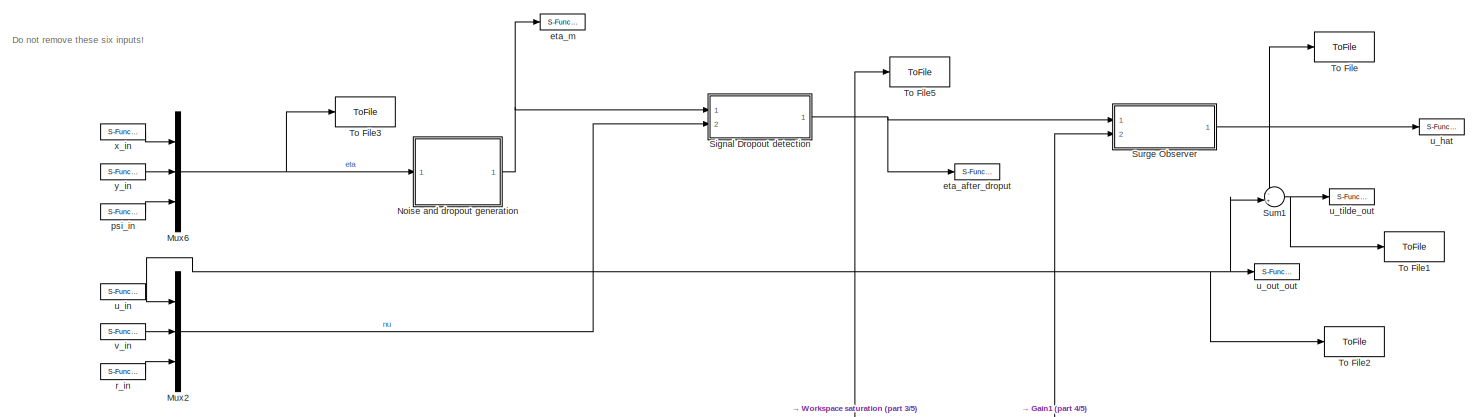
[diagram: root canvas - part 1/5, top center region]
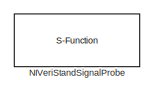
[diagram: root canvas - part 2/5, top right region]
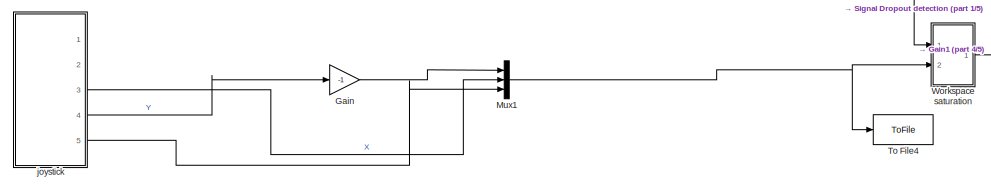
[diagram: root canvas - part 3/5, middle left region]
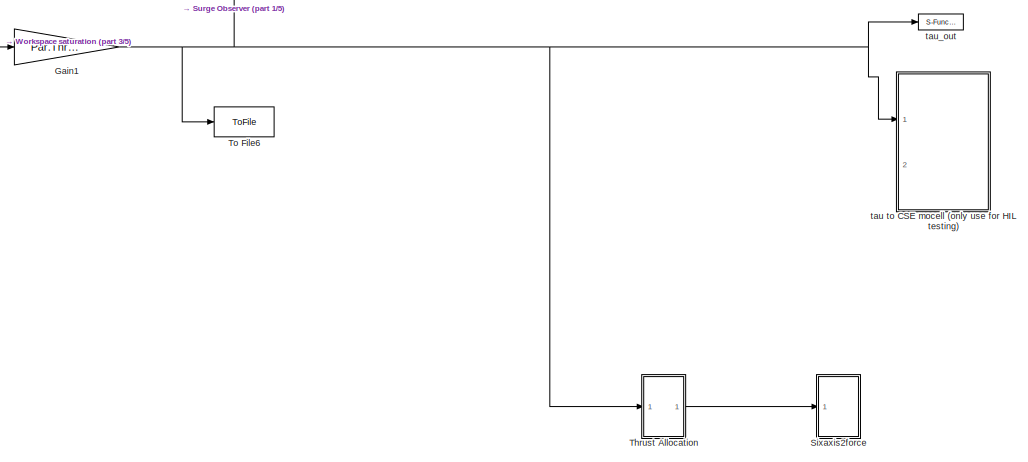
[diagram: root canvas - part 4/5, bottom right region]
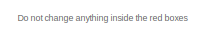
[diagram: root canvas - part 5/5, bottom left region]
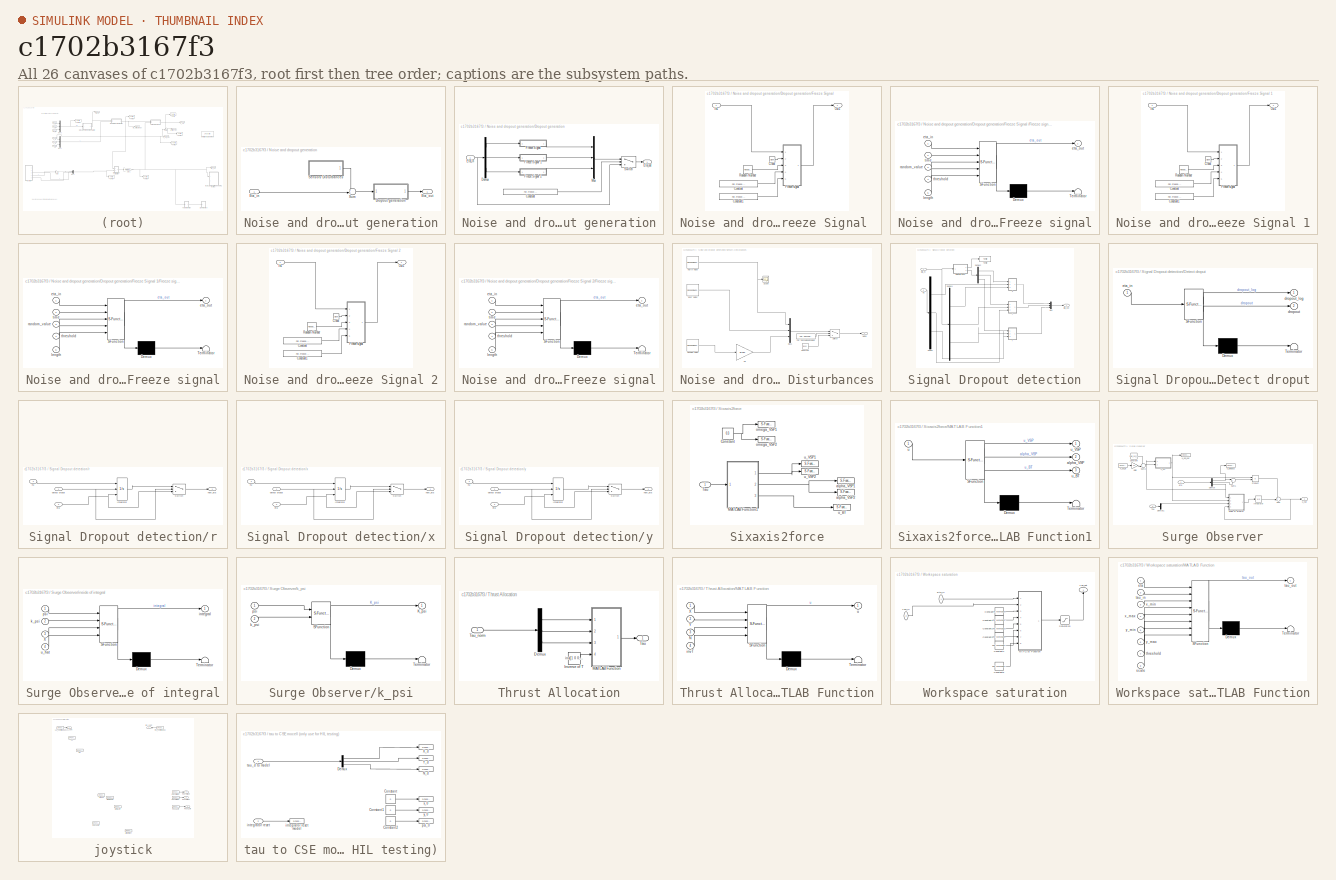
[diagram: thumbnail index - all 26 canvases of the model, root first then tree order]
MODEL slx_c1702b3167f3
KIND model
CONFIG AbsTol = auto
CONFIG FixedStep = 0.01
CONFIG MaxStep = auto
CONFIG MinStep = auto
CONFIG RelTol = 1e-3
CONFIG SampleTimeConstraint = Unconstrained
CONFIG Solver = ode4
CONFIG SolverMode = Auto
CONFIG SolverName = ode4
CONFIG StartTime = 0.0
CONFIG StopTime = inf
BLOCK [Gain] Gain
  Gain = -1
  OutDataTypeStr = Inherit: Inherit via internal rule
  ParamDataTypeStr = Inherit: Inherit via internal rule
  SaturateOnIntegerOverflow = off
BLOCK [Gain] Gain1
  Gain = Par.Thrust_lim
  OutDataTypeStr = Inherit: Inherit via internal rule
  ParamDataTypeStr = Inherit: Inherit via internal rule
  SaturateOnIntegerOverflow = off
BLOCK [Mux] Mux1
  DisplayOption = bar
  Inputs = 3
  Ports = [3, 1]
BLOCK [Mux] Mux2
  DisplayOption = bar
  Inputs = 3
  Ports = [3, 1]
BLOCK [Mux] Mux6
  DisplayOption = bar
  Inputs = 3
  Ports = [3, 1]
BLOCK [S-Function] NIVeriStandSignalProbe
  FunctionName = NIVeriStandSignalProbe
  Parameters = 1
  Ports = []
BLOCK [SubSystem] Noise and dropout generation
  Ports = [1, 1]
  RequestExecContextInheritance = off
BLOCK [SubSystem] Noise and dropout generation/Dropout generation
  Ports = [1, 1]
  RequestExecContextInheritance = off
BLOCK [Constant] Noise and dropout generation/Dropout generation/Constant
  Value = Par.Freeze.Enable
BLOCK [Demux] Noise and dropout generation/Dropout generation/Demux
  DisplayOption = bar
  Outputs = 3
  Ports = [1, 3]
BLOCK [Inport] Noise and dropout generation/Dropout generation/Eta_in
  IconDisplay = Port number
BLOCK [Outport] Noise and dropout generation/Dropout generation/Eta_out
  IconDisplay = Port number
BLOCK [SubSystem] Noise and dropout generation/Dropout generation/Freeze Signal 
  Ports = [1, 1]
  RequestExecContextInheritance = off
BLOCK [Clock] Noise and dropout generation/Dropout generation/Freeze Signal /Clock
BLOCK [Constant] Noise and dropout generation/Dropout generation/Freeze Signal /Constant
  Value = Par.Freeze.threshold
BLOCK [Constant] Noise and dropout generation/Dropout generation/Freeze Signal /Constant1
  Value = Par.Freeze.length
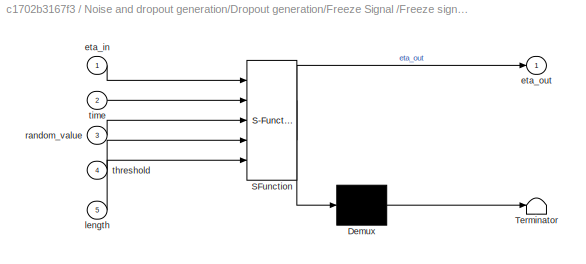
BLOCK [SubSystem] Noise and dropout generation/Dropout generation/Freeze Signal /Freeze signal
  ErrorFcn = Stateflow.Translate.translate
  PermitHierarchicalResolution = ExplicitOnly
  Ports = [5, 1]
  RequestExecContextInheritance = off
  SFBlockType = MATLAB Function
  TreatAsAtomicUnit = on
BLOCK [Demux] Noise and dropout generation/Dropout generation/Freeze Signal /Freeze signal/ Demux 
  Outputs = 1
  Ports = [1, 1]
BLOCK [S-Function] Noise and dropout generation/Dropout generation/Freeze Signal /Freeze signal/ SFunction 
  EnableBusSupport = on
  FunctionName = sf_sfun
  PortCounts = [5 2]
  Ports = [5, 2]
  Tag = Stateflow S-Function ctrl_student_HI_backup 11
BLOCK [Terminator] Noise and dropout generation/Dropout generation/Freeze Signal /Freeze signal/ Terminator 
BLOCK [Inport] Noise and dropout generation/Dropout generation/Freeze Signal /Freeze signal/eta_in
  IconDisplay = Port number
BLOCK [Outport] Noise and dropout generation/Dropout generation/Freeze Signal /Freeze signal/eta_out
  IconDisplay = Port number
BLOCK [Inport] Noise and dropout generation/Dropout generation/Freeze Signal /Freeze signal/length
  IconDisplay = Port number
  Port = 5
BLOCK [Inport] Noise and dropout generation/Dropout generation/Freeze Signal /Freeze signal/random_value
  IconDisplay = Port number
  Port = 3
BLOCK [Inport] Noise and dropout generation/Dropout generation/Freeze Signal /Freeze signal/threshold
  IconDisplay = Port number
  Port = 4
BLOCK [Inport] Noise and dropout generation/Dropout generation/Freeze Signal /Freeze signal/time
  IconDisplay = Port number
  Port = 2
BLOCK [Inport] Noise and dropout generation/Dropout generation/Freeze Signal /In1
  IconDisplay = Port number
BLOCK [Outport] Noise and dropout generation/Dropout generation/Freeze Signal /Out1
  IconDisplay = Port number
BLOCK [RandomNumber] Noise and dropout generation/Dropout generation/Freeze Signal /Random Number
  SampleTime = Par.Sample_time
  Seed = ceil(abs(5*round(abs(now*1e6 - fix(now*1e6))*1e5)))
BLOCK [SubSystem] Noise and dropout generation/Dropout generation/Freeze Signal 1
  Ports = [1, 1]
  RequestExecContextInheritance = off
BLOCK [Clock] Noise and dropout generation/Dropout generation/Freeze Signal 1/Clock
BLOCK [Constant] Noise and dropout generation/Dropout generation/Freeze Signal 1/Constant
  Value = Par.Freeze.threshold
BLOCK [Constant] Noise and dropout generation/Dropout generation/Freeze Signal 1/Constant1
  Value = Par.Freeze.length
BLOCK [SubSystem] Noise and dropout generation/Dropout generation/Freeze Signal 1/Freeze signal
  ErrorFcn = Stateflow.Translate.translate
  PermitHierarchicalResolution = ExplicitOnly
  Ports = [5, 1]
  RequestExecContextInheritance = off
  SFBlockType = MATLAB Function
  TreatAsAtomicUnit = on
BLOCK [Demux] Noise and dropout generation/Dropout generation/Freeze Signal 1/Freeze signal/ Demux 
  Outputs = 1
  Ports = [1, 1]
BLOCK [S-Function] Noise and dropout generation/Dropout generation/Freeze Signal 1/Freeze signal/ SFunction 
  EnableBusSupport = on
  FunctionName = sf_sfun
  PortCounts = [5 2]
  Ports = [5, 2]
  Tag = Stateflow S-Function ctrl_student_HI_backup 12
BLOCK [Terminator] Noise and dropout generation/Dropout generation/Freeze Signal 1/Freeze signal/ Terminator 
BLOCK [Inport] Noise and dropout generation/Dropout generation/Freeze Signal 1/Freeze signal/eta_in
  IconDisplay = Port number
BLOCK [Outport] Noise and dropout generation/Dropout generation/Freeze Signal 1/Freeze signal/eta_out
  IconDisplay = Port number
BLOCK [Inport] Noise and dropout generation/Dropout generation/Freeze Signal 1/Freeze signal/length
  IconDisplay = Port number
  Port = 5
BLOCK [Inport] Noise and dropout generation/Dropout generation/Freeze Signal 1/Freeze signal/random_value
  IconDisplay = Port number
  Port = 3
BLOCK [Inport] Noise and dropout generation/Dropout generation/Freeze Signal 1/Freeze signal/threshold
  IconDisplay = Port number
  Port = 4
BLOCK [Inport] Noise and dropout generation/Dropout generation/Freeze Signal 1/Freeze signal/time
  IconDisplay = Port number
  Port = 2
BLOCK [Inport] Noise and dropout generation/Dropout generation/Freeze Signal 1/In1
  IconDisplay = Port number
BLOCK [Outport] Noise and dropout generation/Dropout generation/Freeze Signal 1/Out1
  IconDisplay = Port number
BLOCK [RandomNumber] Noise and dropout generation/Dropout generation/Freeze Signal 1/Random Number
  SampleTime = Par.Sample_time
  Seed = ceil(abs(5*round(abs(now*1e6 - fix(now*1e6))*1e5)))
BLOCK [SubSystem] Noise and dropout generation/Dropout generation/Freeze Signal 2
  Ports = [1, 1]
  RequestExecContextInheritance = off
BLOCK [Clock] Noise and dropout generation/Dropout generation/Freeze Signal 2/Clock
BLOCK [Constant] Noise and dropout generation/Dropout generation/Freeze Signal 2/Constant
  Value = Par.Freeze.threshold
BLOCK [Constant] Noise and dropout generation/Dropout generation/Freeze Signal 2/Constant1
  Value = Par.Freeze.length
BLOCK [SubSystem] Noise and dropout generation/Dropout generation/Freeze Signal 2/Freeze signal
  ErrorFcn = Stateflow.Translate.translate
  PermitHierarchicalResolution = ExplicitOnly
  Ports = [5, 1]
  RequestExecContextInheritance = off
  SFBlockType = MATLAB Function
  TreatAsAtomicUnit = on
BLOCK [Demux] Noise and dropout generation/Dropout generation/Freeze Signal 2/Freeze signal/ Demux 
  Outputs = 1
  Ports = [1, 1]
BLOCK [S-Function] Noise and dropout generation/Dropout generation/Freeze Signal 2/Freeze signal/ SFunction 
  EnableBusSupport = on
  FunctionName = sf_sfun
  PortCounts = [5 2]
  Ports = [5, 2]
  Tag = Stateflow S-Function ctrl_student_HI_backup 13
BLOCK [Terminator] Noise and dropout generation/Dropout generation/Freeze Signal 2/Freeze signal/ Terminator 
BLOCK [Inport] Noise and dropout generation/Dropout generation/Freeze Signal 2/Freeze signal/eta_in
  IconDisplay = Port number
BLOCK [Outport] Noise and dropout generation/Dropout generation/Freeze Signal 2/Freeze signal/eta_out
  IconDisplay = Port number
BLOCK [Inport] Noise and dropout generation/Dropout generation/Freeze Signal 2/Freeze signal/length
  IconDisplay = Port number
  Port = 5
BLOCK [Inport] Noise and dropout generation/Dropout generation/Freeze Signal 2/Freeze signal/random_value
  IconDisplay = Port number
  Port = 3
BLOCK [Inport] Noise and dropout generation/Dropout generation/Freeze Signal 2/Freeze signal/threshold
  IconDisplay = Port number
  Port = 4
BLOCK [Inport] Noise and dropout generation/Dropout generation/Freeze Signal 2/Freeze signal/time
  IconDisplay = Port number
  Port = 2
BLOCK [Inport] Noise and dropout generation/Dropout generation/Freeze Signal 2/In1
  IconDisplay = Port number
BLOCK [Outport] Noise and dropout generation/Dropout generation/Freeze Signal 2/Out1
  IconDisplay = Port number
BLOCK [RandomNumber] Noise and dropout generation/Dropout generation/Freeze Signal 2/Random Number
  SampleTime = Par.Sample_time
  Seed = ceil(abs(5*round(abs(now*1e6 - fix(now*1e6))*1e5)))
BLOCK [Mux] Noise and dropout generation/Dropout generation/Mux
  DisplayOption = bar
  Inputs = 3
  Ports = [3, 1]
BLOCK [Switch] Noise and dropout generation/Dropout generation/Switch
  Criteria = u2 > Threshold
  InputSameDT = off
  SaturateOnIntegerOverflow = off
BLOCK [Inport] Noise and dropout generation/Eta_in
  IconDisplay = Port number
BLOCK [Outport] Noise and dropout generation/Eta_out
  IconDisplay = Port number
BLOCK [SubSystem] Noise and dropout generation/Sensors Disturbances
  Ports = [0, 1]
  RequestExecContextInheritance = off
BLOCK [Constant] Noise and dropout generation/Sensors Disturbances/Constant
  Value = [0 0 0]
BLOCK [RandomNumber] Noise and dropout generation/Sensors Disturbances/East Noise
  DisableCoverage = on
  SampleTime = Par.Sample_time
  Seed = ceil(abs(5*round(abs(now*1e6 - fix(now*1e6))*1e5)))
  Variance = Par.Noise.Power
  VectorParams1D = off
BLOCK [RandomNumber] Noise and dropout generation/Sensors Disturbances/Heading Noise
  DisableCoverage = on
  SampleTime = Par.Sample_time
  Seed = ceil(abs(11*round(abs(now*1e6 - fix(now*1e6))*1e5)))
  Variance = Par.Noise.Power
BLOCK [Gain] Noise and dropout generation/Sensors Disturbances/Ki4
  Gain = pi/180
  OutDataTypeStr = Inherit: Inherit via internal rule
  ParamDataTypeStr = Inherit: Inherit via internal rule
  RndMeth = Nearest
  SaturateOnIntegerOverflow = off
BLOCK [Mux] Noise and dropout generation/Sensors Disturbances/Mux1
  DisplayOption = bar
  Inputs = 3
  Ports = [3, 1]
BLOCK [Outport] Noise and dropout generation/Sensors Disturbances/Noise
  IconDisplay = Port number
BLOCK [RandomNumber] Noise and dropout generation/Sensors Disturbances/North Noise
  DisableCoverage = on
  SampleTime = Par.Sample_time
  Seed = ceil(abs(3*round(abs(now*1e6 - fix(now*1e6))*1e5)))
  Variance = Par.Noise.Power
BLOCK [Constant] Noise and dropout generation/Sensors Disturbances/Par.SensNoiseEnabled
  Value = Par.SensNoiseEnabled
BLOCK [Scope] Noise and dropout generation/Sensors Disturbances/Scope
  DataFormat = StructureWithTime
  Floating = off
  LimitDataPoints = off
  NumInputPorts = 1
  Ports = [1]
  SaveName = ScopeData2
  YMax = 0.47143
  YMin = -0.51365
BLOCK [Switch] Noise and dropout generation/Sensors Disturbances/Switch
  Criteria = u2 > Threshold
  InputSameDT = off
  SaturateOnIntegerOverflow = off
BLOCK [Sum] Noise and dropout generation/Sum
  IconShape = round
  InputSameDT = off
  Inputs = ++|
  OutDataTypeStr = Inherit: Inherit via internal rule
  Ports = [2, 1]
  SaturateOnIntegerOverflow = off
BLOCK [SubSystem] Signal Dropout detection
  Ports = [2, 1]
  RequestExecContextInheritance = off
BLOCK [Demux] Signal Dropout detection/Demux
  DisplayOption = bar
  Outputs = 3
  Ports = [1, 3]
BLOCK [Demux] Signal Dropout detection/Demux1
  DisplayOption = bar
  Outputs = 3
  Ports = [1, 3]
BLOCK [Demux] Signal Dropout detection/Demux2
  DisplayOption = bar
  Outputs = 3
  Ports = [1, 3]
BLOCK [SubSystem] Signal Dropout detection/Detect droput
  ErrorFcn = Stateflow.Translate.translate
  PermitHierarchicalResolution = ExplicitOnly
  Ports = [1, 2]
  RequestExecContextInheritance = off
  SFBlockType = MATLAB Function
  TreatAsAtomicUnit = on
BLOCK [Demux] Signal Dropout detection/Detect droput/ Demux 
  Outputs = 1
  Ports = [1, 1]
BLOCK [S-Function] Signal Dropout detection/Detect droput/ SFunction 
  EnableBusSupport = on
  FunctionName = sf_sfun
  PortCounts = [1 3]
  Ports = [1, 3]
  Tag = Stateflow S-Function ctrl_student_HI_backup 10
BLOCK [Terminator] Signal Dropout detection/Detect droput/ Terminator 
BLOCK [Outport] Signal Dropout detection/Detect droput/dropout
  IconDisplay = Port number
  Port = 2
BLOCK [Outport] Signal Dropout detection/Detect droput/dropout_log
  IconDisplay = Port number
BLOCK [Inport] Signal Dropout detection/Detect droput/eta_in
  IconDisplay = Port number
BLOCK [Inport] Signal Dropout detection/Eta_m
  IconDisplay = Port number
BLOCK [Outport] Signal Dropout detection/Eta_out
  IconDisplay = Port number
BLOCK [Mux] Signal Dropout detection/Mux
  DisplayOption = bar
  Inputs = 3
  Ports = [3, 1]
BLOCK [Inport] Signal Dropout detection/Nu
  IconDisplay = Port number
  Port = 2
BLOCK [ToFile] Signal Dropout detection/To File
  Filename = dropout.mat
  Ports = [1]
BLOCK [SubSystem] Signal Dropout detection/r
  Ports = [3, 1]
  RequestExecContextInheritance = off
BLOCK [Integrator] Signal Dropout detection/r/Integrator
  ExternalReset = rising
  InitialConditionSource = external
  Ports = [3, 1]
BLOCK [Switch] Signal Dropout detection/r/Switch
  Criteria = u2 ~= 0
  InputSameDT = off
  SaturateOnIntegerOverflow = off
BLOCK [Inport] Signal Dropout detection/r/detect droput
  IconDisplay = Port number
BLOCK [Inport] Signal Dropout detection/r/eta
  IconDisplay = Port number
  Port = 3
BLOCK [Outport] Signal Dropout detection/r/new_eta
  IconDisplay = Port number
BLOCK [Inport] Signal Dropout detection/r/nu
  IconDisplay = Port number
  Port = 2
BLOCK [SubSystem] Signal Dropout detection/x
  Ports = [3, 1]
  RequestExecContextInheritance = off
BLOCK [Integrator] Signal Dropout detection/x/Integrator
  ExternalReset = rising
  InitialConditionSource = external
  Ports = [3, 1]
BLOCK [Switch] Signal Dropout detection/x/Switch
  Criteria = u2 ~= 0
  InputSameDT = off
  SaturateOnIntegerOverflow = off
BLOCK [Inport] Signal Dropout detection/x/detect droput
  IconDisplay = Port number
BLOCK [Inport] Signal Dropout detection/x/eta
  IconDisplay = Port number
  Port = 3
BLOCK [Outport] Signal Dropout detection/x/new_eta
  IconDisplay = Port number
BLOCK [Inport] Signal Dropout detection/x/nu
  IconDisplay = Port number
  Port = 2
BLOCK [SubSystem] Signal Dropout detection/y
  Ports = [3, 1]
  RequestExecContextInheritance = off
BLOCK [Integrator] Signal Dropout detection/y/Integrator
  ExternalReset = rising
  InitialConditionSource = external
  Ports = [3, 1]
BLOCK [Switch] Signal Dropout detection/y/Switch
  Criteria = u2 ~= 0
  InputSameDT = off
  SaturateOnIntegerOverflow = off
BLOCK [Inport] Signal Dropout detection/y/detect droput
  IconDisplay = Port number
BLOCK [Inport] Signal Dropout detection/y/eta
  IconDisplay = Port number
  Port = 3
BLOCK [Outport] Signal Dropout detection/y/new_eta
  IconDisplay = Port number
BLOCK [Inport] Signal Dropout detection/y/nu
  IconDisplay = Port number
  Port = 2
BLOCK [SubSystem] Sixaxis2force
  Ports = [1]
  RequestExecContextInheritance = off
BLOCK [Constant] Sixaxis2force/Constant
  Value = 0.3
BLOCK [SubSystem] Sixaxis2force/MATLAB Function1
  ErrorFcn = Stateflow.Translate.translate
  PermitHierarchicalResolution = ExplicitOnly
  Ports = [1, 3]
  RequestExecContextInheritance = off
  SFBlockType = MATLAB Function
  TreatAsAtomicUnit = on
BLOCK [Demux] Sixaxis2force/MATLAB Function1/ Demux 
  Outputs = 1
  Ports = [1, 1]
BLOCK [S-Function] Sixaxis2force/MATLAB Function1/ SFunction 
  EnableBusSupport = on
  FunctionName = sf_sfun
  PortCounts = [1 4]
  Ports = [1, 4]
  Tag = Stateflow S-Function ctrl_student_HI_backup 4
BLOCK [Terminator] Sixaxis2force/MATLAB Function1/ Terminator 
BLOCK [Outport] Sixaxis2force/MATLAB Function1/alpha_VSP
  IconDisplay = Port number
  Port = 2
BLOCK [Inport] Sixaxis2force/MATLAB Function1/u
  IconDisplay = Port number
BLOCK [Outport] Sixaxis2force/MATLAB Function1/u_BT
  IconDisplay = Port number
  Port = 3
BLOCK [Outport] Sixaxis2force/MATLAB Function1/u_VSP
  IconDisplay = Port number
BLOCK [Inport] Sixaxis2force/Tau
  IconDisplay = Port number
BLOCK [S-Function] Sixaxis2force/alpha_VSP1
  CopyFcn = NIVeriStand_MDL_functions('', 'IO_copy');
  DeleteFcn = NIVeriStand_MDL_functions('', 'IO_delete');
  FunctionName = NIVeriStandIO
  MoveFcn = set_param(gcb, 'Mask', 'on');
  Parameters = width dtype portnum stime stype btype
  Ports = [1]
  Priority = 1
BLOCK [S-Function] Sixaxis2force/alpha_VSP2
  CopyFcn = NIVeriStand_MDL_functions('', 'IO_copy');
  DeleteFcn = NIVeriStand_MDL_functions('', 'IO_delete');
  FunctionName = NIVeriStandIO
  MoveFcn = set_param(gcb, 'Mask', 'on');
  Parameters = width dtype portnum stime stype btype
  Ports = [1]
  Priority = 2
BLOCK [S-Function] Sixaxis2force/omega_VSP1
  CopyFcn = NIVeriStand_MDL_functions('', 'IO_copy');
  DeleteFcn = NIVeriStand_MDL_functions('', 'IO_delete');
  FunctionName = NIVeriStandIO
  MoveFcn = set_param(gcb, 'Mask', 'on');
  Parameters = width dtype portnum stime stype btype
  Ports = [1]
  Priority = 3
BLOCK [S-Function] Sixaxis2force/omega_VSP2
  CopyFcn = NIVeriStand_MDL_functions('', 'IO_copy');
  DeleteFcn = NIVeriStand_MDL_functions('', 'IO_delete');
  FunctionName = NIVeriStandIO
  MoveFcn = set_param(gcb, 'Mask', 'on');
  Parameters = width dtype portnum stime stype btype
  Ports = [1]
  Priority = 4
BLOCK [S-Function] Sixaxis2force/u_BT
  CopyFcn = NIVeriStand_MDL_functions('', 'IO_copy');
  DeleteFcn = NIVeriStand_MDL_functions('', 'IO_delete');
  FunctionName = NIVeriStandIO
  MoveFcn = set_param(gcb, 'Mask', 'on');
  Parameters = width dtype portnum stime stype btype
  Ports = [1]
  Priority = 5
BLOCK [S-Function] Sixaxis2force/u_VSP1
  CopyFcn = NIVeriStand_MDL_functions('', 'IO_copy');
  DeleteFcn = NIVeriStand_MDL_functions('', 'IO_delete');
  FunctionName = NIVeriStandIO
  MoveFcn = set_param(gcb, 'Mask', 'on');
  Parameters = width dtype portnum stime stype btype
  Ports = [1]
  Priority = 6
BLOCK [S-Function] Sixaxis2force/u_VSP2
  CopyFcn = NIVeriStand_MDL_functions('', 'IO_copy');
  DeleteFcn = NIVeriStand_MDL_functions('', 'IO_delete');
  FunctionName = NIVeriStandIO
  MoveFcn = set_param(gcb, 'Mask', 'on');
  Parameters = width dtype portnum stime stype btype
  Ports = [1]
  Priority = 7
BLOCK [Sum] Sum1
  IconShape = round
  InputSameDT = off
  Inputs = -+|
  OutDataTypeStr = Inherit: Inherit via internal rule
  Ports = [2, 1]
  SaturateOnIntegerOverflow = off
BLOCK [SubSystem] Surge Observer
  Ports = [2, 1]
  RequestExecContextInheritance = off
BLOCK [Constant] Surge Observer/Constant
  Value = Par.K_psi_init
BLOCK [Demux] Surge Observer/Demux
  DisplayOption = bar
  Outputs = 3
  Ports = [1, 3]
BLOCK [Demux] Surge Observer/Demux1
  DisplayOption = bar
  Outputs = 3
  Ports = [1, 3]
BLOCK [Gain] Surge Observer/Gain
  Gain = 0.1
  OutDataTypeStr = Inherit: Inherit via internal rule
  ParamDataTypeStr = Inherit: Inherit via internal rule
  SaturateOnIntegerOverflow = off
BLOCK [Integrator] Surge Observer/Integrator
  Ports = [1, 1]
BLOCK [S-Function] Surge Observer/K_psi_in
  CopyFcn = NIVeriStand_MDL_functions('', 'IO_copy');
  DeleteFcn = NIVeriStand_MDL_functions('', 'IO_delete');
  FunctionName = NIVeriStandIO
  MoveFcn = set_param(gcb, 'Mask', 'on');
  Parameters = width dtype portnum stime stype btype
  Ports = [0, 1]
  Priority = 1
BLOCK [S-Function] Surge Observer/K_psi_out
  CopyFcn = NIVeriStand_MDL_functions('', 'IO_copy');
  DeleteFcn = NIVeriStand_MDL_functions('', 'IO_delete');
  FunctionName = NIVeriStandIO
  MoveFcn = set_param(gcb, 'Mask', 'on');
  Parameters = width dtype portnum stime stype btype
  Ports = [1]
  Priority = 1
BLOCK [Product] Surge Observer/Product
  InputSameDT = off
  OutDataTypeStr = Inherit: Inherit via internal rule
  Ports = [2, 1]
  RndMeth = Floor
  SaturateOnIntegerOverflow = off
BLOCK [Sum] Surge Observer/Sum
  IconShape = round
  InputSameDT = off
  Inputs = ++|
  OutDataTypeStr = Inherit: Inherit via internal rule
  Ports = [2, 1]
  SaturateOnIntegerOverflow = off
BLOCK [Sum] Surge Observer/Sum1
  IconShape = round
  InputSameDT = off
  Inputs = |++
  OutDataTypeStr = Inherit: Inherit via internal rule
  Ports = [2, 1]
  SaturateOnIntegerOverflow = off
BLOCK [Sum] Surge Observer/Sum2
  IconShape = round
  InputSameDT = off
  Inputs = ++|
  OutDataTypeStr = Inherit: Inherit via internal rule
  Ports = [2, 1]
  SaturateOnIntegerOverflow = off
BLOCK [Inport] Surge Observer/Tau
  IconDisplay = Port number
  Port = 2
BLOCK [Inport] Surge Observer/eta
  IconDisplay = Port number
BLOCK [SubSystem] Surge Observer/inside of integral
  ErrorFcn = Stateflow.Translate.translate
  PermitHierarchicalResolution = ExplicitOnly
  Ports = [4, 1]
  RequestExecContextInheritance = off
  SFBlockType = MATLAB Function
  TreatAsAtomicUnit = on
BLOCK [Demux] Surge Observer/inside of integral/ Demux 
  Outputs = 1
  Ports = [1, 1]
BLOCK [S-Function] Surge Observer/inside of integral/ SFunction 
  EnableBusSupport = on
  FunctionName = sf_sfun
  PortCounts = [4 2]
  Ports = [4, 2]
  Tag = Stateflow S-Function ctrl_student_HI_backup 2
BLOCK [Terminator] Surge Observer/inside of integral/ Terminator 
BLOCK [Inport] Surge Observer/inside of integral/X
  IconDisplay = Port number
  Port = 3
BLOCK [Outport] Surge Observer/inside of integral/integral
  IconDisplay = Port number
BLOCK [Inport] Surge Observer/inside of integral/k_psi
  IconDisplay = Port number
  Port = 2
BLOCK [Inport] Surge Observer/inside of integral/psi
  IconDisplay = Port number
BLOCK [Inport] Surge Observer/inside of integral/u_hat
  IconDisplay = Port number
  Port = 4
BLOCK [SubSystem] Surge Observer/k_psi
  ErrorFcn = Stateflow.Translate.translate
  PermitHierarchicalResolution = ExplicitOnly
  Ports = [2, 1]
  RequestExecContextInheritance = off
  SFBlockType = MATLAB Function
  TreatAsAtomicUnit = on
BLOCK [Demux] Surge Observer/k_psi/ Demux 
  Outputs = 1
  Ports = [1, 1]
BLOCK [S-Function] Surge Observer/k_psi/ SFunction 
  EnableBusSupport = on
  FunctionName = sf_sfun
  PortCounts = [2 2]
  Ports = [2, 2]
  Tag = Stateflow S-Function ctrl_student_HI_backup 6
BLOCK [Terminator] Surge Observer/k_psi/ Terminator 
BLOCK [Outport] Surge Observer/k_psi/K_psi
  IconDisplay = Port number
BLOCK [Inport] Surge Observer/k_psi/k_psi
  IconDisplay = Port number
  Port = 2
BLOCK [Inport] Surge Observer/k_psi/psi
  IconDisplay = Port number
BLOCK [Outport] Surge Observer/u_hat
  IconDisplay = Port number
BLOCK [S-Function] Surge Observer/x_lowpass
  CopyFcn = NIVeriStand_MDL_functions('', 'IO_copy');
  DeleteFcn = NIVeriStand_MDL_functions('', 'IO_delete');
  FunctionName = NIVeriStandIO
  MoveFcn = set_param(gcb, 'Mask', 'on');
  Parameters = width dtype portnum stime stype btype
  Ports = [1]
  Priority = 2
BLOCK [SubSystem] Thrust Allocation
  Ports = [1, 1]
  RequestExecContextInheritance = off
BLOCK [Demux] Thrust Allocation/Demux
  DisplayOption = bar
  Outputs = 3
  Ports = [1, 3]
BLOCK [Constant] Thrust Allocation/Inverse of T
  Value = inv([1 0 0; 0 1 1; 0 -0.4575 0.3875])
BLOCK [SubSystem] Thrust Allocation/MATLAB Function
  ErrorFcn = Stateflow.Translate.translate
  PermitHierarchicalResolution = ExplicitOnly
  Ports = [4, 1]
  RequestExecContextInheritance = off
  SFBlockType = MATLAB Function
  TreatAsAtomicUnit = on
BLOCK [Demux] Thrust Allocation/MATLAB Function/ Demux 
  Outputs = 1
  Ports = [1, 1]
BLOCK [S-Function] Thrust Allocation/MATLAB Function/ SFunction 
  EnableBusSupport = on
  FunctionName = sf_sfun
  PortCounts = [4 2]
  Ports = [4, 2]
  Tag = Stateflow S-Function ctrl_student_HI_backup 1
BLOCK [Terminator] Thrust Allocation/MATLAB Function/ Terminator 
BLOCK [Inport] Thrust Allocation/MATLAB Function/N
  IconDisplay = Port number
  Port = 3
BLOCK [Inport] Thrust Allocation/MATLAB Function/X
  IconDisplay = Port number
BLOCK [Inport] Thrust Allocation/MATLAB Function/Y
  IconDisplay = Port number
  Port = 2
BLOCK [Inport] Thrust Allocation/MATLAB Function/invT
  IconDisplay = Port number
  Port = 4
BLOCK [Outport] Thrust Allocation/MATLAB Function/u
  IconDisplay = Port number
BLOCK [Outport] Thrust Allocation/Tau
  IconDisplay = Port number
BLOCK [Inport] Thrust Allocation/Tau_norm
  IconDisplay = Port number
BLOCK [ToFile] To File
  Filename = u_hat
  Ports = [1]
BLOCK [ToFile] To File1
  Filename = u_tilde
  Ports = [1]
BLOCK [ToFile] To File2
  Filename = u_real
  Ports = [1]
BLOCK [ToFile] To File3
  Filename = psi
  Ports = [1]
BLOCK [ToFile] To File4
  Filename = tau
  Ports = [1]
BLOCK [ToFile] To File5
  Filename = eta_hat
  Ports = [1]
BLOCK [ToFile] To File6
  Filename = tau_out
  Ports = [1]
BLOCK [SubSystem] Workspace saturation
  Ports = [2, 1]
  RequestExecContextInheritance = off
BLOCK [Constant] Workspace saturation/Constant
  Value = Par.Workspace.x_min
BLOCK [Constant] Workspace saturation/Constant1
  Value = Par.Workspace.x_max
BLOCK [Constant] Workspace saturation/Constant2
  Value = Par.Workspace.y_min
BLOCK [Constant] Workspace saturation/Constant3
  Value = Par.Workspace.y_max
BLOCK [Constant] Workspace saturation/Constant4
  Value = Par.Workspace.threshold
BLOCK [Constant] Workspace saturation/Constant5
  Value = Par.Workspace.gain
BLOCK [Inport] Workspace saturation/Eta_in
  IconDisplay = Port number
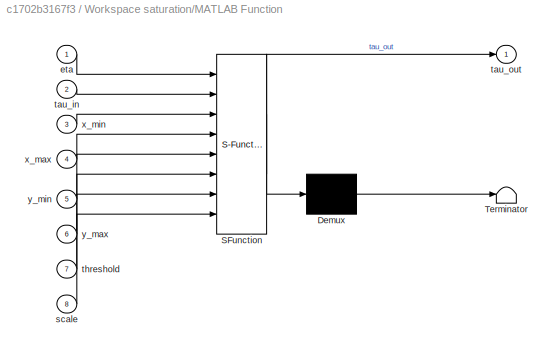
BLOCK [SubSystem] Workspace saturation/MATLAB Function
  ErrorFcn = Stateflow.Translate.translate
  PermitHierarchicalResolution = ExplicitOnly
  Ports = [8, 1]
  RequestExecContextInheritance = off
  SFBlockType = MATLAB Function
  TreatAsAtomicUnit = on
BLOCK [Demux] Workspace saturation/MATLAB Function/ Demux 
  Outputs = 1
  Ports = [1, 1]
BLOCK [S-Function] Workspace saturation/MATLAB Function/ SFunction 
  EnableBusSupport = on
  FunctionName = sf_sfun
  PortCounts = [8 2]
  Ports = [8, 2]
  Tag = Stateflow S-Function ctrl_student_HI_backup 3
BLOCK [Terminator] Workspace saturation/MATLAB Function/ Terminator 
BLOCK [Inport] Workspace saturation/MATLAB Function/eta
  IconDisplay = Port number
BLOCK [Inport] Workspace saturation/MATLAB Function/scale
  IconDisplay = Port number
  Port = 8
BLOCK [Inport] Workspace saturation/MATLAB Function/tau_in
  IconDisplay = Port number
  Port = 2
BLOCK [Outport] Workspace saturation/MATLAB Function/tau_out
  IconDisplay = Port number
BLOCK [Inport] Workspace saturation/MATLAB Function/threshold
  IconDisplay = Port number
  Port = 7
BLOCK [Inport] Workspace saturation/MATLAB Function/x_max
  IconDisplay = Port number
  Port = 4
BLOCK [Inport] Workspace saturation/MATLAB Function/x_min
  IconDisplay = Port number
  Port = 3
BLOCK [Inport] Workspace saturation/MATLAB Function/y_max
  IconDisplay = Port number
  Port = 6
BLOCK [Inport] Workspace saturation/MATLAB Function/y_min
  IconDisplay = Port number
  Port = 5
BLOCK [Saturate] Workspace saturation/Saturation
  InputPortMap = u0
  LowerLimit = [-1 -1 -1]
  Ports = [1, 1]
  UpperLimit = [1 1 1]
BLOCK [Inport] Workspace saturation/Tau_in
  IconDisplay = Port number
  Port = 2
BLOCK [Outport] Workspace saturation/Tau_out
  IconDisplay = Port number
BLOCK [S-Function] eta_after_droput
  CopyFcn = NIVeriStand_MDL_functions('', 'IO_copy');
  DeleteFcn = NIVeriStand_MDL_functions('', 'IO_delete');
  FunctionName = NIVeriStandIO
  MoveFcn = set_param(gcb, 'Mask', 'on');
  Parameters = width dtype portnum stime stype btype
  Ports = [1]
  Priority = 5
BLOCK [S-Function] eta_m
  CopyFcn = NIVeriStand_MDL_functions('', 'IO_copy');
  DeleteFcn = NIVeriStand_MDL_functions('', 'IO_delete');
  FunctionName = NIVeriStandIO
  MoveFcn = set_param(gcb, 'Mask', 'on');
  Parameters = width dtype portnum stime stype btype
  Ports = [1]
  Priority = 4
BLOCK [SubSystem] joystick
  Ports = [0, 5]
  RequestExecContextInheritance = off
BLOCK [S-Function] joystick/ArrowDown
  CopyFcn = NIVeriStand_MDL_functions('', 'IO_copy');
  DeleteFcn = NIVeriStand_MDL_functions('', 'IO_delete');
  FunctionName = NIVeriStandIO
  MoveFcn = set_param(gcb, 'Mask', 'on');
  Parameters = width dtype portnum stime stype btype
  Ports = [0, 1]
  Priority = 9
BLOCK [S-Function] joystick/ArrowLeft
  CopyFcn = NIVeriStand_MDL_functions('', 'IO_copy');
  DeleteFcn = NIVeriStand_MDL_functions('', 'IO_delete');
  FunctionName = NIVeriStandIO
  MoveFcn = set_param(gcb, 'Mask', 'on');
  Parameters = width dtype portnum stime stype btype
  Ports = [0, 1]
  Priority = 11
BLOCK [S-Function] joystick/ArrowRight
  CopyFcn = NIVeriStand_MDL_functions('', 'IO_copy');
  DeleteFcn = NIVeriStand_MDL_functions('', 'IO_delete');
  FunctionName = NIVeriStandIO
  MoveFcn = set_param(gcb, 'Mask', 'on');
  Parameters = width dtype portnum stime stype btype
  Ports = [0, 1]
  Priority = 12
BLOCK [S-Function] joystick/ArrowUp
  CopyFcn = NIVeriStand_MDL_functions('', 'IO_copy');
  DeleteFcn = NIVeriStand_MDL_functions('', 'IO_delete');
  FunctionName = NIVeriStandIO
  MoveFcn = set_param(gcb, 'Mask', 'on');
  Parameters = width dtype portnum stime stype btype
  Ports = [0, 1]
  Priority = 10
BLOCK [S-Function] joystick/L1
  CopyFcn = NIVeriStand_MDL_functions('', 'IO_copy');
  DeleteFcn = NIVeriStand_MDL_functions('', 'IO_delete');
  FunctionName = NIVeriStandIO
  MoveFcn = set_param(gcb, 'Mask', 'on');
  Parameters = width dtype portnum stime stype btype
  Ports = [0, 1]
  Priority = 7
BLOCK [Outport] joystick/L2_cont
  IconDisplay = Port number
BLOCK [S-Function] joystick/L2_continuous
  CopyFcn = NIVeriStand_MDL_functions('', 'IO_copy');
  DeleteFcn = NIVeriStand_MDL_functions('', 'IO_delete');
  FunctionName = NIVeriStandIO
  MoveFcn = set_param(gcb, 'Mask', 'on');
  Parameters = width dtype portnum stime stype btype
  Ports = [0, 1]
  Priority = 1
BLOCK [Outport] joystick/PosX Left
  IconDisplay = Port number
  Port = 5
BLOCK [Outport] joystick/PosX Right
  IconDisplay = Port number
  Port = 3
BLOCK [S-Function] joystick/PosXLeft
  CopyFcn = NIVeriStand_MDL_functions('', 'IO_copy');
  DeleteFcn = NIVeriStand_MDL_functions('', 'IO_delete');
  FunctionName = NIVeriStandIO
  MoveFcn = set_param(gcb, 'Mask', 'on');
  Parameters = width dtype portnum stime stype btype
  Ports = [0, 1]
  Priority = 5
BLOCK [S-Function] joystick/PosXRight
  CopyFcn = NIVeriStand_MDL_functions('', 'IO_copy');
  DeleteFcn = NIVeriStand_MDL_functions('', 'IO_delete');
  FunctionName = NIVeriStandIO
  MoveFcn = set_param(gcb, 'Mask', 'on');
  Parameters = width dtype portnum stime stype btype
  Ports = [0, 1]
  Priority = 2
BLOCK [Outport] joystick/PosY Right
  IconDisplay = Port number
  Port = 4
BLOCK [S-Function] joystick/PosYLeft
  CopyFcn = NIVeriStand_MDL_functions('', 'IO_copy');
  DeleteFcn = NIVeriStand_MDL_functions('', 'IO_delete');
  FunctionName = NIVeriStandIO
  MoveFcn = set_param(gcb, 'Mask', 'on');
  Parameters = width dtype portnum stime stype btype
  Ports = [0, 1]
  Priority = 6
BLOCK [S-Function] joystick/PosYRight
  CopyFcn = NIVeriStand_MDL_functions('', 'IO_copy');
  DeleteFcn = NIVeriStand_MDL_functions('', 'IO_delete');
  FunctionName = NIVeriStandIO
  MoveFcn = set_param(gcb, 'Mask', 'on');
  Parameters = width dtype portnum stime stype btype
  Ports = [0, 1]
  Priority = 3
BLOCK [S-Function] joystick/R1
  CopyFcn = NIVeriStand_MDL_functions('', 'IO_copy');
  DeleteFcn = NIVeriStand_MDL_functions('', 'IO_delete');
  FunctionName = NIVeriStandIO
  MoveFcn = set_param(gcb, 'Mask', 'on');
  Parameters = width dtype portnum stime stype btype
  Ports = [0, 1]
  Priority = 8
BLOCK [Outport] joystick/R2_cont
  IconDisplay = Port number
  Port = 2
BLOCK [S-Function] joystick/R2_continuous
  CopyFcn = NIVeriStand_MDL_functions('', 'IO_copy');
  DeleteFcn = NIVeriStand_MDL_functions('', 'IO_delete');
  FunctionName = NIVeriStandIO
  MoveFcn = set_param(gcb, 'Mask', 'on');
  Parameters = width dtype portnum stime stype btype
  Ports = [0, 1]
  Priority = 4
BLOCK [S-Function] psi_in
  CopyFcn = NIVeriStand_MDL_functions('', 'IO_copy');
  DeleteFcn = NIVeriStand_MDL_functions('', 'IO_delete');
  FunctionName = NIVeriStandIO
  MoveFcn = set_param(gcb, 'Mask', 'on');
  Parameters = width dtype portnum stime stype btype
  Ports = [0, 1]
  Priority = 2
BLOCK [S-Function] r_in
  CopyFcn = NIVeriStand_MDL_functions('', 'IO_copy');
  DeleteFcn = NIVeriStand_MDL_functions('', 'IO_delete');
  FunctionName = NIVeriStandIO
  MoveFcn = set_param(gcb, 'Mask', 'on');
  Parameters = width dtype portnum stime stype btype
  Ports = [0, 1]
  Priority = 4
BLOCK [SubSystem] tau to CSE mocell (only use for HIL testing)
  Ports = [2]
  RequestExecContextInheritance = off
BLOCK [Constant] tau to CSE mocell (only use for HIL testing)/Constant
  Value = 0
BLOCK [Constant] tau to CSE mocell (only use for HIL testing)/Constant1
  Value = 0
BLOCK [Constant] tau to CSE mocell (only use for HIL testing)/Constant2
  Value = 0
BLOCK [Demux] tau to CSE mocell (only use for HIL testing)/Demux
  DisplayOption = bar
  Outputs = 3
  Ports = [1, 3]
BLOCK [S-Function] tau to CSE mocell (only use for HIL testing)/N_d
  CopyFcn = NIVeriStand_MDL_functions('', 'IO_copy');
  DeleteFcn = NIVeriStand_MDL_functions('', 'IO_delete');
  FunctionName = NIVeriStandIO
  MoveFcn = set_param(gcb, 'Mask', 'on');
  Parameters = width dtype portnum stime stype btype
  Ports = [1]
  Priority = 2
BLOCK [S-Function] tau to CSE mocell (only use for HIL testing)/X_d
  CopyFcn = NIVeriStand_MDL_functions('', 'IO_copy');
  DeleteFcn = NIVeriStand_MDL_functions('', 'IO_delete');
  FunctionName = NIVeriStandIO
  MoveFcn = set_param(gcb, 'Mask', 'on');
  Parameters = width dtype portnum stime stype btype
  Ports = [1]
  Priority = 1
BLOCK [S-Function] tau to CSE mocell (only use for HIL testing)/Y_d
  CopyFcn = NIVeriStand_MDL_functions('', 'IO_copy');
  DeleteFcn = NIVeriStand_MDL_functions('', 'IO_delete');
  FunctionName = NIVeriStandIO
  MoveFcn = set_param(gcb, 'Mask', 'on');
  Parameters = width dtype portnum stime stype btype
  Ports = [1]
  Priority = 3
BLOCK [Inport] tau to CSE mocell (only use for HIL testing)/integrator reset
  IconDisplay = Port number
  Port = 2
BLOCK [S-Function] tau to CSE mocell (only use for HIL testing)/integrator reset model
  CopyFcn = NIVeriStand_MDL_functions('', 'IO_copy');
  DeleteFcn = NIVeriStand_MDL_functions('', 'IO_delete');
  FunctionName = NIVeriStandIO
  MoveFcn = set_param(gcb, 'Mask', 'on');
  Parameters = width dtype portnum stime stype btype
  Ports = [1]
  Priority = 7
BLOCK [S-Function] tau to CSE mocell (only use for HIL testing)/psi_0 
  CopyFcn = NIVeriStand_MDL_functions('', 'IO_copy');
  DeleteFcn = NIVeriStand_MDL_functions('', 'IO_delete');
  FunctionName = NIVeriStandIO
  MoveFcn = set_param(gcb, 'Mask', 'on');
  Parameters = width dtype portnum stime stype btype
  Ports = [1]
  Priority = 4
BLOCK [Inport] tau to CSE mocell (only use for HIL testing)/tau_d to model
  IconDisplay = Port number
BLOCK [S-Function] tau to CSE mocell (only use for HIL testing)/x_0
  CopyFcn = NIVeriStand_MDL_functions('', 'IO_copy');
  DeleteFcn = NIVeriStand_MDL_functions('', 'IO_delete');
  FunctionName = NIVeriStandIO
  MoveFcn = set_param(gcb, 'Mask', 'on');
  Parameters = width dtype portnum stime stype btype
  Ports = [1]
  Priority = 5
BLOCK [S-Function] tau to CSE mocell (only use for HIL testing)/y_0
  CopyFcn = NIVeriStand_MDL_functions('', 'IO_copy');
  DeleteFcn = NIVeriStand_MDL_functions('', 'IO_delete');
  FunctionName = NIVeriStandIO
  MoveFcn = set_param(gcb, 'Mask', 'on');
  Parameters = width dtype portnum stime stype btype
  Ports = [1]
  Priority = 6
BLOCK [S-Function] tau_out
  CopyFcn = NIVeriStand_MDL_functions('', 'IO_copy');
  DeleteFcn = NIVeriStand_MDL_functions('', 'IO_delete');
  FunctionName = NIVeriStandIO
  MoveFcn = set_param(gcb, 'Mask', 'on');
  Parameters = width dtype portnum stime stype btype
  Ports = [1]
  Priority = 6
BLOCK [S-Function] u_hat
  CopyFcn = NIVeriStand_MDL_functions('', 'IO_copy');
  DeleteFcn = NIVeriStand_MDL_functions('', 'IO_delete');
  FunctionName = NIVeriStandIO
  MoveFcn = set_param(gcb, 'Mask', 'on');
  Parameters = width dtype portnum stime stype btype
  Ports = [1]
  Priority = 1
BLOCK [S-Function] u_in
  CopyFcn = NIVeriStand_MDL_functions('', 'IO_copy');
  DeleteFcn = NIVeriStand_MDL_functions('', 'IO_delete');
  FunctionName = NIVeriStandIO
  MoveFcn = set_param(gcb, 'Mask', 'on');
  Parameters = width dtype portnum stime stype btype
  Ports = [0, 1]
  Priority = 5
BLOCK [S-Function] u_out_out
  CopyFcn = NIVeriStand_MDL_functions('', 'IO_copy');
  DeleteFcn = NIVeriStand_MDL_functions('', 'IO_delete');
  FunctionName = NIVeriStandIO
  MoveFcn = set_param(gcb, 'Mask', 'on');
  Parameters = width dtype portnum stime stype btype
  Ports = [1]
  Priority = 2
BLOCK [S-Function] u_tilde_out
  CopyFcn = NIVeriStand_MDL_functions('', 'IO_copy');
  DeleteFcn = NIVeriStand_MDL_functions('', 'IO_delete');
  FunctionName = NIVeriStandIO
  MoveFcn = set_param(gcb, 'Mask', 'on');
  Parameters = width dtype portnum stime stype btype
  Ports = [1]
  Priority = 3
BLOCK [S-Function] v_in
  CopyFcn = NIVeriStand_MDL_functions('', 'IO_copy');
  DeleteFcn = NIVeriStand_MDL_functions('', 'IO_delete');
  FunctionName = NIVeriStandIO
  MoveFcn = set_param(gcb, 'Mask', 'on');
  Parameters = width dtype portnum stime stype btype
  Ports = [0, 1]
  Priority = 6
BLOCK [S-Function] x_in
  CopyFcn = NIVeriStand_MDL_functions('', 'IO_copy');
  DeleteFcn = NIVeriStand_MDL_functions('', 'IO_delete');
  FunctionName = NIVeriStandIO
  MoveFcn = set_param(gcb, 'Mask', 'on');
  Parameters = width dtype portnum stime stype btype
  Ports = [0, 1]
  Priority = 3
BLOCK [S-Function] y_in
  CopyFcn = NIVeriStand_MDL_functions('', 'IO_copy');
  DeleteFcn = NIVeriStand_MDL_functions('', 'IO_delete');
  FunctionName = NIVeriStandIO
  MoveFcn = set_param(gcb, 'Mask', 'on');
  Parameters = width dtype portnum stime stype btype
  Ports = [0, 1]
  Priority = 1
ANNOTATION (root): Do not change anything inside the red boxes
ANNOTATION (root): Do not remove these six inputs!
NET Gain1:1 -> Surge Observer:2, Thrust Allocation:1, To File6:1, tau to CSE mocell (only use for HIL testing):1, tau_out:1
LINE Gain:1 -> Mux1:1
NET Mux1:1 -> To File4:1, Workspace saturation:2
LINE Mux2:1 -> Signal Dropout detection:2
NET Mux6:1 -> Noise and dropout generation:1, To File3:1
LINE Noise and dropout generation/Dropout generation/Constant:1 -> Noise and dropout generation/Dropout generation/Switch:2
LINE Noise and dropout generation/Dropout generation/Demux:1 -> Noise and dropout generation/Dropout generation/Freeze Signal :1
LINE Noise and dropout generation/Dropout generation/Demux:2 -> Noise and dropout generation/Dropout generation/Freeze Signal 1:1
LINE Noise and dropout generation/Dropout generation/Demux:3 -> Noise and dropout generation/Dropout generation/Freeze Signal 2:1
NET Noise and dropout generation/Dropout generation/Eta_in:1 -> Noise and dropout generation/Dropout generation/Demux:1, Noise and dropout generation/Dropout generation/Switch:3
LINE Noise and dropout generation/Dropout generation/Freeze Signal /Clock:1 -> Noise and dropout generation/Dropout generation/Freeze Signal /Freeze signal:2
LINE Noise and dropout generation/Dropout generation/Freeze Signal /Constant1:1 -> Noise and dropout generation/Dropout generation/Freeze Signal /Freeze signal:5
LINE Noise and dropout generation/Dropout generation/Freeze Signal /Constant:1 -> Noise and dropout generation/Dropout generation/Freeze Signal /Freeze signal:4
LINE Noise and dropout generation/Dropout generation/Freeze Signal /Freeze signal:1 -> Noise and dropout generation/Dropout generation/Freeze Signal /Out1:1
LINE Noise and dropout generation/Dropout generation/Freeze Signal /In1:1 -> Noise and dropout generation/Dropout generation/Freeze Signal /Freeze signal:1
LINE Noise and dropout generation/Dropout generation/Freeze Signal /Random Number:1 -> Noise and dropout generation/Dropout generation/Freeze Signal /Freeze signal:3
LINE Noise and dropout generation/Dropout generation/Freeze Signal 1/Clock:1 -> Noise and dropout generation/Dropout generation/Freeze Signal 1/Freeze signal:2
LINE Noise and dropout generation/Dropout generation/Freeze Signal 1/Constant1:1 -> Noise and dropout generation/Dropout generation/Freeze Signal 1/Freeze signal:5
LINE Noise and dropout generation/Dropout generation/Freeze Signal 1/Constant:1 -> Noise and dropout generation/Dropout generation/Freeze Signal 1/Freeze signal:4
LINE Noise and dropout generation/Dropout generation/Freeze Signal 1/Freeze signal:1 -> Noise and dropout generation/Dropout generation/Freeze Signal 1/Out1:1
LINE Noise and dropout generation/Dropout generation/Freeze Signal 1/In1:1 -> Noise and dropout generation/Dropout generation/Freeze Signal 1/Freeze signal:1
LINE Noise and dropout generation/Dropout generation/Freeze Signal 1/Random Number:1 -> Noise and dropout generation/Dropout generation/Freeze Signal 1/Freeze signal:3
LINE Noise and dropout generation/Dropout generation/Freeze Signal 1:1 -> Noise and dropout generation/Dropout generation/Mux:2
LINE Noise and dropout generation/Dropout generation/Freeze Signal 2/Clock:1 -> Noise and dropout generation/Dropout generation/Freeze Signal 2/Freeze signal:2
LINE Noise and dropout generation/Dropout generation/Freeze Signal 2/Constant1:1 -> Noise and dropout generation/Dropout generation/Freeze Signal 2/Freeze signal:5
LINE Noise and dropout generation/Dropout generation/Freeze Signal 2/Constant:1 -> Noise and dropout generation/Dropout generation/Freeze Signal 2/Freeze signal:4
LINE Noise and dropout generation/Dropout generation/Freeze Signal 2/Freeze signal:1 -> Noise and dropout generation/Dropout generation/Freeze Signal 2/Out1:1
LINE Noise and dropout generation/Dropout generation/Freeze Signal 2/In1:1 -> Noise and dropout generation/Dropout generation/Freeze Signal 2/Freeze signal:1
LINE Noise and dropout generation/Dropout generation/Freeze Signal 2/Random Number:1 -> Noise and dropout generation/Dropout generation/Freeze Signal 2/Freeze signal:3
LINE Noise and dropout generation/Dropout generation/Freeze Signal 2:1 -> Noise and dropout generation/Dropout generation/Mux:3
LINE Noise and dropout generation/Dropout generation/Freeze Signal :1 -> Noise and dropout generation/Dropout generation/Mux:1
LINE Noise and dropout generation/Dropout generation/Mux:1 -> Noise and dropout generation/Dropout generation/Switch:1
LINE Noise and dropout generation/Dropout generation/Switch:1 -> Noise and dropout generation/Dropout generation/Eta_out:1
LINE Noise and dropout generation/Dropout generation:1 -> Noise and dropout generation/Eta_out:1
LINE Noise and dropout generation/Eta_in:1 -> Noise and dropout generation/Sum:2
LINE Noise and dropout generation/Sensors Disturbances/Constant:1 -> Noise and dropout generation/Sensors Disturbances/Switch:3
LINE Noise and dropout generation/Sensors Disturbances/East Noise:1 -> Noise and dropout generation/Sensors Disturbances/Mux1:2
LINE Noise and dropout generation/Sensors Disturbances/Heading Noise:1 -> Noise and dropout generation/Sensors Disturbances/Ki4:1
LINE Noise and dropout generation/Sensors Disturbances/Ki4:1 -> Noise and dropout generation/Sensors Disturbances/Mux1:3
LINE Noise and dropout generation/Sensors Disturbances/Mux1:1 -> Noise and dropout generation/Sensors Disturbances/Switch:1
NET Noise and dropout generation/Sensors Disturbances/North Noise:1 -> Noise and dropout generation/Sensors Disturbances/Mux1:1, Noise and dropout generation/Sensors Disturbances/Scope:1
LINE Noise and dropout generation/Sensors Disturbances/Par.SensNoiseEnabled:1 -> Noise and dropout generation/Sensors Disturbances/Switch:2
LINE Noise and dropout generation/Sensors Disturbances/Switch:1 -> Noise and dropout generation/Sensors Disturbances/Noise:1
LINE Noise and dropout generation/Sensors Disturbances:1 -> Noise and dropout generation/Sum:1
LINE Noise and dropout generation/Sum:1 -> Noise and dropout generation/Dropout generation:1
NET Noise and dropout generation:1 -> Signal Dropout detection:1, eta_m:1
LINE Signal Dropout detection/Demux1:1 -> Signal Dropout detection/x:3
LINE Signal Dropout detection/Demux1:2 -> Signal Dropout detection/y:2
LINE Signal Dropout detection/Demux1:3 -> Signal Dropout detection/r:2
LINE Signal Dropout detection/Demux2:1 -> Signal Dropout detection/x:1
LINE Signal Dropout detection/Demux2:2 -> Signal Dropout detection/y:1
LINE Signal Dropout detection/Demux2:3 -> Signal Dropout detection/r:1
LINE Signal Dropout detection/Demux:1 -> Signal Dropout detection/x:2
LINE Signal Dropout detection/Demux:2 -> Signal Dropout detection/y:3
LINE Signal Dropout detection/Demux:3 -> Signal Dropout detection/r:3
LINE Signal Dropout detection/Detect droput:1 -> Signal Dropout detection/To File:1
LINE Signal Dropout detection/Detect droput:2 -> Signal Dropout detection/Demux2:1
NET Signal Dropout detection/Eta_m:1 -> Signal Dropout detection/Demux1:1, Signal Dropout detection/Detect droput:1
LINE Signal Dropout detection/Mux:1 -> Signal Dropout detection/Eta_out:1
LINE Signal Dropout detection/Nu:1 -> Signal Dropout detection/Demux:1
LINE Signal Dropout detection/r/Integrator:1 -> Signal Dropout detection/r/Switch:1
LINE Signal Dropout detection/r/Switch:1 -> Signal Dropout detection/r/new_eta:1
NET Signal Dropout detection/r/detect droput:1 -> Signal Dropout detection/r/Integrator:2, Signal Dropout detection/r/Switch:2
NET Signal Dropout detection/r/eta:1 -> Signal Dropout detection/r/Integrator:3, Signal Dropout detection/r/Switch:3
LINE Signal Dropout detection/r/nu:1 -> Signal Dropout detection/r/Integrator:1
LINE Signal Dropout detection/r:1 -> Signal Dropout detection/Mux:3
LINE Signal Dropout detection/x/Integrator:1 -> Signal Dropout detection/x/Switch:1
LINE Signal Dropout detection/x/Switch:1 -> Signal Dropout detection/x/new_eta:1
NET Signal Dropout detection/x/detect droput:1 -> Signal Dropout detection/x/Integrator:2, Signal Dropout detection/x/Switch:2
NET Signal Dropout detection/x/eta:1 -> Signal Dropout detection/x/Integrator:3, Signal Dropout detection/x/Switch:3
LINE Signal Dropout detection/x/nu:1 -> Signal Dropout detection/x/Integrator:1
LINE Signal Dropout detection/x:1 -> Signal Dropout detection/Mux:1
LINE Signal Dropout detection/y/Integrator:1 -> Signal Dropout detection/y/Switch:1
LINE Signal Dropout detection/y/Switch:1 -> Signal Dropout detection/y/new_eta:1
NET Signal Dropout detection/y/detect droput:1 -> Signal Dropout detection/y/Integrator:2, Signal Dropout detection/y/Switch:2
NET Signal Dropout detection/y/eta:1 -> Signal Dropout detection/y/Integrator:3, Signal Dropout detection/y/Switch:3
LINE Signal Dropout detection/y/nu:1 -> Signal Dropout detection/y/Integrator:1
LINE Signal Dropout detection/y:1 -> Signal Dropout detection/Mux:2
NET Signal Dropout detection:1 -> Surge Observer:1, To File5:1, Workspace saturation:1, eta_after_droput:1
NET Sixaxis2force/Constant:1 -> Sixaxis2force/omega_VSP1:1, Sixaxis2force/omega_VSP2:1
NET Sixaxis2force/MATLAB Function1:1 -> Sixaxis2force/u_VSP1:1, Sixaxis2force/u_VSP2:1
NET Sixaxis2force/MATLAB Function1:2 -> Sixaxis2force/alpha_VSP1:1, Sixaxis2force/alpha_VSP2:1
LINE Sixaxis2force/MATLAB Function1:3 -> Sixaxis2force/u_BT:1
LINE Sixaxis2force/Tau:1 -> Sixaxis2force/MATLAB Function1:1
NET Sum1:1 -> To File1:1, u_tilde_out:1
LINE Surge Observer/Constant:1 -> Surge Observer/Sum2:1
LINE Surge Observer/Demux1:1 -> Surge Observer/inside of integral:3
NET Surge Observer/Demux:1 -> Surge Observer/Sum1:1, Surge Observer/x_lowpass:1
LINE Surge Observer/Demux:2 -> Surge Observer/Sum1:2
NET Surge Observer/Demux:3 -> Surge Observer/inside of integral:1, Surge Observer/k_psi:1
LINE Surge Observer/Gain:1 -> Surge Observer/Sum2:2
LINE Surge Observer/Integrator:1 -> Surge Observer/Sum:2
LINE Surge Observer/K_psi_in:1 -> Surge Observer/Gain:1
LINE Surge Observer/Product:1 -> Surge Observer/Sum:1
LINE Surge Observer/Sum1:1 -> Surge Observer/Product:2
LINE Surge Observer/Sum2:1 -> Surge Observer/k_psi:2
NET Surge Observer/Sum:1 -> Surge Observer/inside of integral:4, Surge Observer/u_hat:1
LINE Surge Observer/Tau:1 -> Surge Observer/Demux1:1
LINE Surge Observer/eta:1 -> Surge Observer/Demux:1
LINE Surge Observer/inside of integral:1 -> Surge Observer/Integrator:1
NET Surge Observer/k_psi:1 -> Surge Observer/K_psi_out:1, Surge Observer/Product:1, Surge Observer/inside of integral:2
NET Surge Observer:1 -> Sum1:1, To File:1, u_hat:1
LINE Thrust Allocation/Demux:1 -> Thrust Allocation/MATLAB Function:1
LINE Thrust Allocation/Demux:2 -> Thrust Allocation/MATLAB Function:2
LINE Thrust Allocation/Demux:3 -> Thrust Allocation/MATLAB Function:3
LINE Thrust Allocation/Inverse of T:1 -> Thrust Allocation/MATLAB Function:4
LINE Thrust Allocation/MATLAB Function:1 -> Thrust Allocation/Tau:1
LINE Thrust Allocation/Tau_norm:1 -> Thrust Allocation/Demux:1
LINE Thrust Allocation:1 -> Sixaxis2force:1
LINE Workspace saturation/Constant1:1 -> Workspace saturation/MATLAB Function:4
LINE Workspace saturation/Constant2:1 -> Workspace saturation/MATLAB Function:5
LINE Workspace saturation/Constant3:1 -> Workspace saturation/MATLAB Function:6
LINE Workspace saturation/Constant4:1 -> Workspace saturation/MATLAB Function:7
LINE Workspace saturation/Constant5:1 -> Workspace saturation/MATLAB Function:8
LINE Workspace saturation/Constant:1 -> Workspace saturation/MATLAB Function:3
LINE Workspace saturation/Eta_in:1 -> Workspace saturation/MATLAB Function:1
LINE Workspace saturation/MATLAB Function:1 -> Workspace saturation/Saturation:1
LINE Workspace saturation/Saturation:1 -> Workspace saturation/Tau_out:1
LINE Workspace saturation/Tau_in:1 -> Workspace saturation/MATLAB Function:2
LINE Workspace saturation:1 -> Gain1:1
LINE joystick/L2_continuous:1 -> joystick/L2_cont:1
LINE joystick/PosXLeft:1 -> joystick/PosX Left:1
LINE joystick/PosXRight:1 -> joystick/PosX Right:1
LINE joystick/PosYRight:1 -> joystick/PosY Right:1
LINE joystick/R2_continuous:1 -> joystick/R2_cont:1
LINE joystick:3 -> Mux1:2
LINE joystick:4 -> Gain:1
LINE joystick:5 -> Mux1:3
LINE psi_in:1 -> Mux6:3
LINE r_in:1 -> Mux2:3
LINE tau to CSE mocell (only use for HIL testing)/Constant1:1 -> tau to CSE mocell (only use for HIL testing)/y_0:1
LINE tau to CSE mocell (only use for HIL testing)/Constant2:1 -> tau to CSE mocell (only use for HIL testing)/psi_0 :1
LINE tau to CSE mocell (only use for HIL testing)/Constant:1 -> tau to CSE mocell (only use for HIL testing)/x_0:1
LINE tau to CSE mocell (only use for HIL testing)/Demux:1 -> tau to CSE mocell (only use for HIL testing)/X_d:1
LINE tau to CSE mocell (only use for HIL testing)/Demux:2 -> tau to CSE mocell (only use for HIL testing)/Y_d:1
LINE tau to CSE mocell (only use for HIL testing)/Demux:3 -> tau to CSE mocell (only use for HIL testing)/N_d:1
LINE tau to CSE mocell (only use for HIL testing)/integrator reset:1 -> tau to CSE mocell (only use for HIL testing)/integrator reset model:1
LINE tau to CSE mocell (only use for HIL testing)/tau_d to model:1 -> tau to CSE mocell (only use for HIL testing)/Demux:1
NET u_in:1 -> Mux2:1, Sum1:2, To File2:1, u_out_out:1
LINE v_in:1 -> Mux2:2
LINE x_in:1 -> Mux6:1
LINE y_in:1 -> Mux6:2
note: NET lines group one-source signal fan-out (src -> all destinations, sorted); 1:1 wires keep LINE
CHART Thrust Allocation/MATLAB Function states=1 transitions=1
  STATE_LABEL 'eML_blk_kernel()'
  STATE_LABEL "SCRIPT:\nfunction u = fcn(X, Y, N, invT)\n%#codegen\nu = [0 0 0]';\nu = invT*[X, Y, N]';"
CHART Surge Observer/inside of integral states=1 transitions=1
  STATE_LABEL 'eML_blk_kernel()'
  STATE_LABEL 'SCRIPT:\nfunction integral = fcn(psi, k_psi, X, u_hat)\n%#codegen\nX_u = -.6555;\nX_uu = .3545;\nX_uuu = -3.787;\nm_11 = 16.79;\nd_11 = -X_u -X_uu*abs(u_hat) - X_uuu*u_hat^2;\nintegral = -d_11*u_hat/m_11 + X/m_11 - k_psi*(cos(psi) + sin(psi))*u_hat;\nend'
CHART Workspace saturation/MATLAB Function states=1 transitions=1
  STATE_LABEL 'eML_blk_kernel()'
  STATE_LABEL 'SCRIPT:\nfunction tau_out = fcn(eta, tau_in, x_min, x_max, y_min, y_max, threshold, scale)\n%#codegen\nR = [cos(eta(3)) sin(eta(3)) 0 ; -sin(eta(3)) cos(eta(3)) 0; 0 0 1];\n\ntau_NED = R*tau_in;\ntau_NED_out = tau_NED;\n\n%check if x is above limits\nif (eta(1) > x_max)\n    %x is above of the limit\n    epsilon = scale*(eta(1) - x_max)/threshold;\n    tau_NED_out(1) = -epsilon + tau_NED(1)*(1-epsilon);\nend\n%...<+584ch>'
CHART Sixaxis2force/MATLAB Function1 states=1 transitions=1
  STATE_LABEL 'eML_blk_kernel()'
  STATE_LABEL 'SCRIPT:\nfunction [u_VSP, alpha_VSP, u_BT]    = fcn(u)\nu_VSP = min([sqrt(u(1)^2 + u(2)^2), 1]);\nalpha_VSP = atan2(u(2), u(1));\nu_BT = u(3);'
CHART Surge Observer/k_psi states=1 transitions=1
  STATE_LABEL 'eML_blk_kernel()'
  STATE_LABEL 'SCRIPT:\nfunction K_psi = fcn(psi,k_psi)\n%#codegen\nK_psi = k_psi*sign(sin(psi) + cos(psi));\n% y = u;'
CHART Signal Dropout detection/Detect droput states=1 transitions=1
  STATE_LABEL 'eML_blk_kernel()'
  STATE_LABEL 'SCRIPT:\nfunction [dropout_log, dropout]  = fcn(eta_in)\npersistent eta_old;\nif isempty(eta_old)\n    eta_old = eta_in;\nend\ndropout_log = zeros(3, 1);\ndropout = (eta_in - eta_old) == 0;\nfor i = 1:3\n    if dropout(i)\n        dropout_log(i) = 1.00;\n    end\nend\neta_old = eta_in;\nend'
CHART Noise and dropout generation/Dropout generation/Freeze Signal
/Freeze signal states=1 transitions=1
  STATE_LABEL 'eML_blk_kernel()'
  STATE_LABEL 'SCRIPT:\nfunction eta_out = fcn(eta_in, time, random_value, threshold, length)\npersistent eta t_1;\nif isempty(eta)\n    eta = eta_in;\n    t_1 = 0;\nend\n\nif random_value > threshold\n    t_1 = time + length*(0.5*rand+0.5);\nend\nif time>=t_1\n    eta = eta_in;\nend\n\neta_out = eta;\nend\n'  <repeated x3 — deduplicated; at blocks: Freeze Signal>
CHART Noise and dropout generation/Dropout generation/Freeze Signal
1/Freeze signal states=1 transitions=1
  STATE_LABEL 'eML_blk_kernel()'
CHART Noise and dropout generation/Dropout generation/Freeze Signal
2/Freeze signal states=1 transitions=1
  STATE_LABEL 'eML_blk_kernel()'
